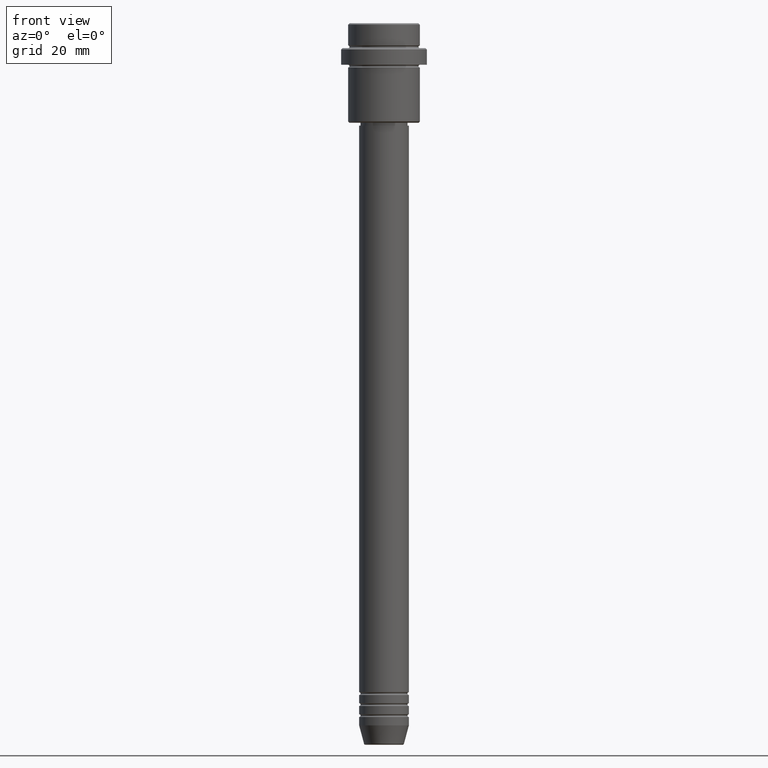
[diagram: clean part render]
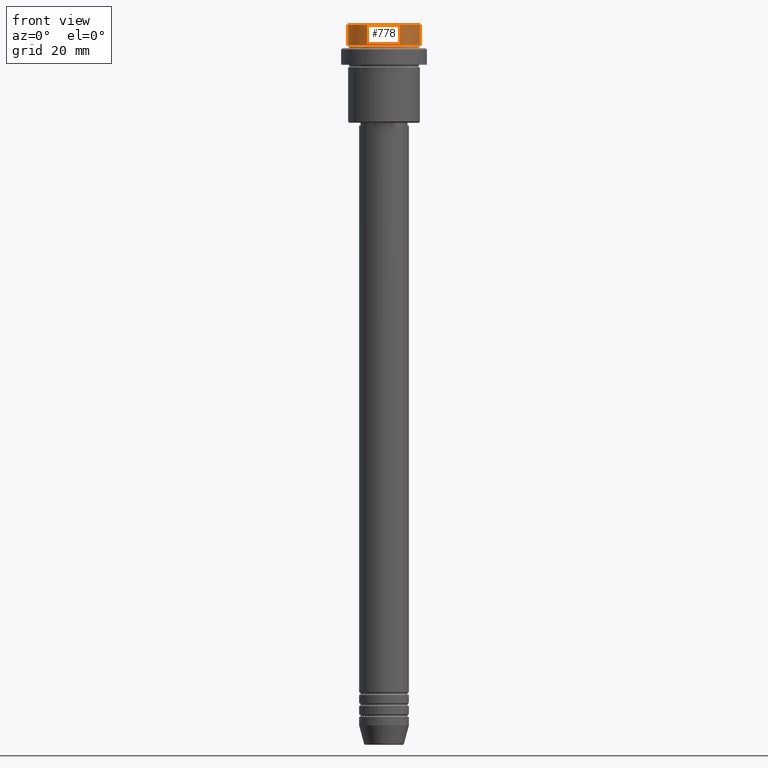
[diagram: same view with one face highlighted and labeled with its STEP entity id]
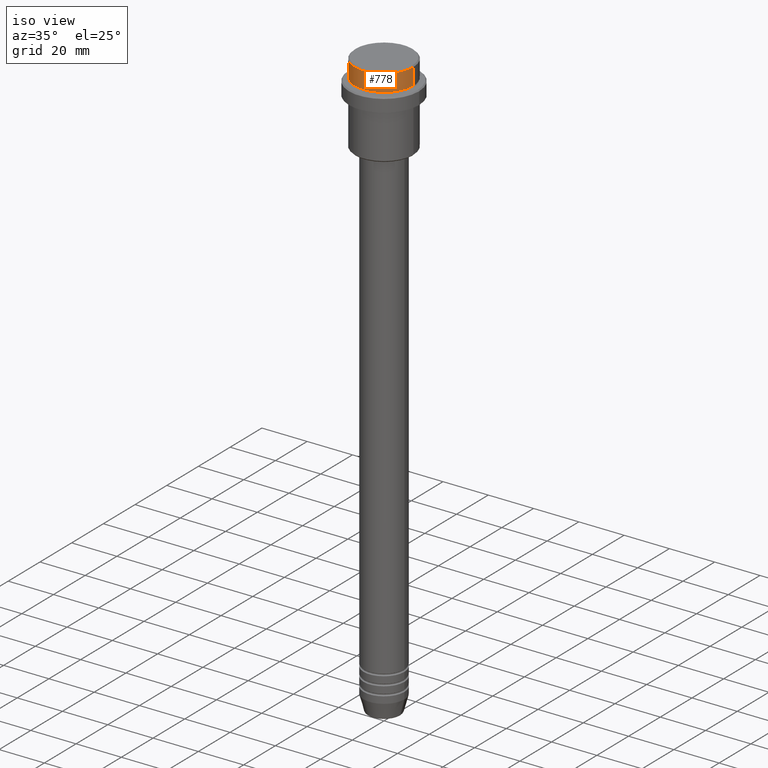
[diagram: same view with one face highlighted and labeled with its STEP entity id]
A machine part, front view. The second image highlights one B-rep face of the part: STEP entity #778.
A second angle (iso view) of the same face is appended — the face is thin or edge-on in the first view.
In plain terms, the highlighted cylindrical surface (edge-blend (fillet) strip) has radius 13 mm, axis along (-0, -0, 1).
Its self-contained STEP definition (entity closure, byte-faithful):
#35 = DIRECTION ( 'NONE',  ( -0.000000000000000000, -0.000000000000000000, 1.000000000000000000 ) ) ;
#37 = EDGE_CURVE ( 'NONE', #500, #1368, #223, .T. ) ;
#98 = CARTESIAN_POINT ( 'NONE',  ( 0.000000000000000000, 0.000000000000000000, -7.999999999999998224 ) ) ;
#122 = DIRECTION ( 'NONE',  ( 0.000000000000000000, 0.000000000000000000, -1.000000000000000000 ) ) ;
#152 = ORIENTED_EDGE ( 'NONE', *, *, #1300, .T. ) ;
#192 = EDGE_CURVE ( 'NONE', #1087, #1368, #1190, .T. ) ;
#223 = CIRCLE ( 'NONE', #666, 12.99999999999999822 ) ;
#323 = CARTESIAN_POINT ( 'NONE',  ( -12.99999999999999822, 1.592040838891558898E-15, 0.000000000000000000 ) ) ;
#340 = CARTESIAN_POINT ( 'NONE',  ( 0.000000000000000000, 0.000000000000000000, -0.4999999999999761302 ) ) ;
#355 = ORIENTED_EDGE ( 'NONE', *, *, #1145, .T. ) ;
#447 = DIRECTION ( 'NONE',  ( 1.000000000000000000, 0.000000000000000000, 0.000000000000000000 ) ) ;
#478 = DIRECTION ( 'NONE',  ( 1.000000000000000000, 0.000000000000000000, 0.000000000000000000 ) ) ;
#500 = VERTEX_POINT ( 'NONE', #1244 ) ;
#562 = CARTESIAN_POINT ( 'NONE',  ( 12.99999999999999822, 0.000000000000000000, -7.999999999999998224 ) ) ;
#567 = FACE_OUTER_BOUND ( 'NONE', #1247, .T. ) ;
#666 = AXIS2_PLACEMENT_3D ( 'NONE', #340, #122, #478 ) ;
#688 = VECTOR ( 'NONE', #1205, 1000.000000000000000 ) ;
#759 = VERTEX_POINT ( 'NONE', #562 ) ;
#778 = ADVANCED_FACE ( 'NONE', ( #567 ), #1014, .T. ) ;
#803 = DIRECTION ( 'NONE',  ( 1.000000000000000000, 0.000000000000000000, 0.000000000000000000 ) ) ;
#812 = AXIS2_PLACEMENT_3D ( 'NONE', #98, #895, #447 ) ;
#819 = CARTESIAN_POINT ( 'NONE',  ( -12.99999999999999822, 1.592040838891558898E-15, -0.4999999999999761302 ) ) ;
#895 = DIRECTION ( 'NONE',  ( -0.000000000000000000, -0.000000000000000000, 1.000000000000000000 ) ) ;
#910 = CARTESIAN_POINT ( 'NONE',  ( 0.000000000000000000, 0.000000000000000000, 0.000000000000000000 ) ) ;
#1014 = CYLINDRICAL_SURFACE ( 'NONE', #1059, 12.99999999999999822 ) ;
#1018 = ORIENTED_EDGE ( 'NONE', *, *, #192, .F. ) ;
#1040 = DIRECTION ( 'NONE',  ( -0.000000000000000000, -0.000000000000000000, 1.000000000000000000 ) ) ;
#1059 = AXIS2_PLACEMENT_3D ( 'NONE', #910, #35, #803 ) ;
#1087 = VERTEX_POINT ( 'NONE', #1403 ) ;
#1145 = EDGE_CURVE ( 'NONE', #1087, #759, #1241, .T. ) ;
#1189 = ORIENTED_EDGE ( 'NONE', *, *, #37, .T. ) ;
#1190 = LINE ( 'NONE', #323, #688 ) ;
#1205 = DIRECTION ( 'NONE',  ( -0.000000000000000000, -0.000000000000000000, 1.000000000000000000 ) ) ;
#1224 = LINE ( 'NONE', #1267, #1377 ) ;
#1241 = CIRCLE ( 'NONE', #812, 12.99999999999999822 ) ;
#1244 = CARTESIAN_POINT ( 'NONE',  ( 12.99999999999999822, 0.000000000000000000, -0.4999999999999761302 ) ) ;
#1247 = EDGE_LOOP ( 'NONE', ( #1018, #355, #152, #1189 ) ) ;
#1267 = CARTESIAN_POINT ( 'NONE',  ( 12.99999999999999822, 0.000000000000000000, 0.000000000000000000 ) ) ;
#1300 = EDGE_CURVE ( 'NONE', #759, #500, #1224, .T. ) ;
#1368 = VERTEX_POINT ( 'NONE', #819 ) ;
#1377 = VECTOR ( 'NONE', #1040, 1000.000000000000000 ) ;
#1403 = CARTESIAN_POINT ( 'NONE',  ( -12.99999999999999822, 1.592040838891558898E-15, -7.999999999999998224 ) ) ;